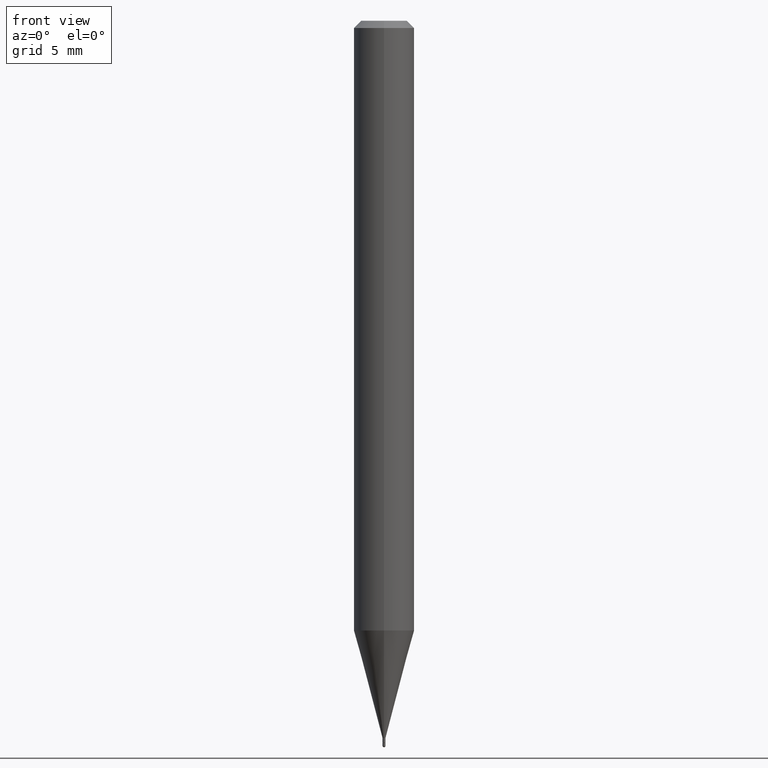
[diagram: clean part render]
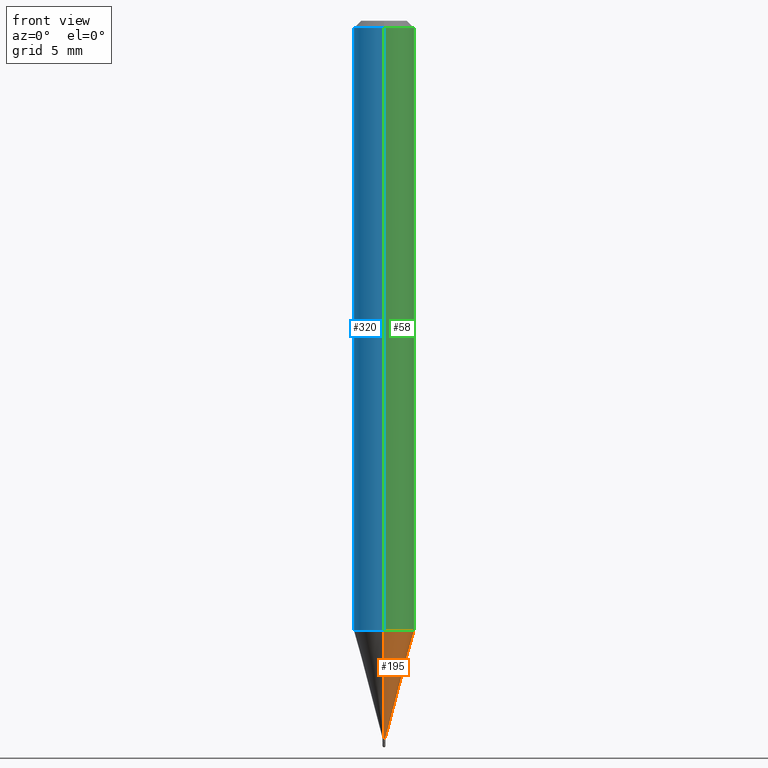
[diagram: same view with three faces highlighted in distinct colors, each labeled with its STEP entity id]
A machine part, front view with three faces highlighted in distinct colors.
Their STEP definitions:

[orange] entity #195 — the highlighted conical surface has half-angle 15 deg.
#26 = CARTESIAN_POINT ( 'NONE',  ( -4.364351673553607559E-16, -0.06250000000000438538, -1.258942976949652293 ) ) ;
#44 = VECTOR ( 'NONE', #398, 39.37007874015748143 ) ;
#75 = VECTOR ( 'NONE', #149, 39.37007874015748143 ) ;
#83 = CIRCLE ( 'NONE', #159, 0.06250000000000000000 ) ;
#100 = CARTESIAN_POINT ( 'NONE',  ( 4.440892098500932831E-16, 0.06249999999999560074, -1.258942976949652737 ) ) ;
#122 = EDGE_CURVE ( 'NONE', #238, #440, #190, .T. ) ;
#129 = DIRECTION ( 'NONE',  ( -6.982962677686264344E-15, -1.000000000000000000, 0.000000000000000000 ) ) ;
#149 = DIRECTION ( 'NONE',  ( 1.839019923739601104E-15, 0.2588190451025250693, 0.9659258262890670910 ) ) ;
#150 = VERTEX_POINT ( 'NONE', #26 ) ;
#156 = DIRECTION ( 'NONE',  ( -6.982962677686265922E-15, -1.000000000000000000, 4.370956789862821150E-15 ) ) ;
#159 = AXIS2_PLACEMENT_3D ( 'NONE', #455, #189, #156 ) ;
#165 = DIRECTION ( 'NONE',  ( -2.445479479011041062E-29, 3.491466054748990607E-15, 1.000000000000000000 ) ) ;
#169 = ORIENTED_EDGE ( 'NONE', *, *, #467, .F. ) ;
#175 = CARTESIAN_POINT ( 'NONE',  ( 2.327027459614661497E-16, 0.002999999999994752090, -1.481000000000000094 ) ) ;
#189 = DIRECTION ( 'NONE',  ( -2.445479479011041062E-29, 3.491466054748990607E-15, 1.000000000000000000 ) ) ;
#190 = LINE ( 'NONE', #501, #75 ) ;
#194 = AXIS2_PLACEMENT_3D ( 'NONE', #349, #165, #129 ) ;
#195 = ADVANCED_FACE ( 'NONE', ( #383 ), #434, .T. ) ;
#213 = ORIENTED_EDGE ( 'NONE', *, *, #321, .F. ) ;
#216 = VERTEX_POINT ( 'NONE', #278 ) ;
#238 = VERTEX_POINT ( 'NONE', #175 ) ;
#260 = EDGE_LOOP ( 'NONE', ( #508, #387, #169, #213 ) ) ;
#271 = EDGE_CURVE ( 'NONE', #216, #238, #485, .T. ) ;
#278 = CARTESIAN_POINT ( 'NONE',  ( -2.094888803302204488E-17, -0.003000000000005094512, -1.481000000000000094 ) ) ;
#310 = DIRECTION ( 'NONE',  ( -2.445479479011041062E-29, 3.491466054748990607E-15, 1.000000000000000000 ) ) ;
#321 = EDGE_CURVE ( 'NONE', #216, #150, #491, .T. ) ;
#343 = CARTESIAN_POINT ( 'NONE',  ( 3.621755108415351772E-29, -5.170861227083255778E-15, -1.481000000000000094 ) ) ;
#349 = CARTESIAN_POINT ( 'NONE',  ( 3.621755108415351772E-29, -5.170861227083255778E-15, -1.481000000000000094 ) ) ;
#355 = DIRECTION ( 'NONE',  ( -6.982962677686264344E-15, -1.000000000000000000, 0.000000000000000000 ) ) ;
#383 = FACE_OUTER_BOUND ( 'NONE', #260, .T. ) ;
#387 = ORIENTED_EDGE ( 'NONE', *, *, #122, .T. ) ;
#388 = AXIS2_PLACEMENT_3D ( 'NONE', #343, #310, #355 ) ;
#398 = DIRECTION ( 'NONE',  ( -1.807323732225330928E-15, -0.2588190451025182970, 0.9659258262890689783 ) ) ;
#434 = CONICAL_SURFACE ( 'NONE', #194, 0.002999999999999923735, 0.2617993877991502960 ) ;
#440 = VERTEX_POINT ( 'NONE', #100 ) ;
#448 = CARTESIAN_POINT ( 'NONE',  ( -2.094888803302204488E-17, -0.003000000000005094512, -1.481000000000000094 ) ) ;
#455 = CARTESIAN_POINT ( 'NONE',  ( 3.078719215375445112E-29, -4.395556668884352464E-15, -1.258942976949652515 ) ) ;
#467 = EDGE_CURVE ( 'NONE', #150, #440, #83, .T. ) ;
#485 = CIRCLE ( 'NONE', #388, 0.002999999999999923735 ) ;
#491 = LINE ( 'NONE', #448, #44 ) ;
#501 = CARTESIAN_POINT ( 'NONE',  ( 2.131628207283867732E-17, 0.002999999999994752958, -1.481000000000000094 ) ) ;
#508 = ORIENTED_EDGE ( 'NONE', *, *, #271, .T. ) ;

[blue] entity #320 — the highlighted cylindrical surface (edge-blend (fillet) strip) has radius 1.5875 mm, axis along (-0, 0, 1).
#6 = EDGE_CURVE ( 'NONE', #440, #257, #303, .T. ) ;
#8 = DIRECTION ( 'NONE',  ( -2.445479479011040781E-29, 3.491466054748990607E-15, 1.000000000000000000 ) ) ;
#11 = CIRCLE ( 'NONE', #178, 0.06250000000000000000 ) ;
#13 = EDGE_CURVE ( 'NONE', #150, #52, #356, .T. ) ;
#26 = CARTESIAN_POINT ( 'NONE',  ( -4.364351673553607559E-16, -0.06250000000000438538, -1.258942976949652293 ) ) ;
#28 = ORIENTED_EDGE ( 'NONE', *, *, #13, .T. ) ;
#37 = DIRECTION ( 'NONE',  ( -6.982962677686265922E-15, -1.000000000000000000, 3.483106191921935554E-15 ) ) ;
#52 = VERTEX_POINT ( 'NONE', #487 ) ;
#100 = CARTESIAN_POINT ( 'NONE',  ( 4.440892098500932831E-16, 0.06249999999999560074, -1.258942976949652737 ) ) ;
#120 = ORIENTED_EDGE ( 'NONE', *, *, #314, .F. ) ;
#136 = CYLINDRICAL_SURFACE ( 'NONE', #369, 0.06250000000000000000 ) ;
#138 = CARTESIAN_POINT ( 'NONE',  ( 0.000000000000000000, 0.000000000000000000, 0.000000000000000000 ) ) ;
#148 = DIRECTION ( 'NONE',  ( -2.445479479011041062E-29, 3.491466054748990607E-15, 1.000000000000000000 ) ) ;
#150 = VERTEX_POINT ( 'NONE', #26 ) ;
#170 = CARTESIAN_POINT ( 'NONE',  ( 3.668219218516502966E-31, -5.237199082123403129E-17, -0.01499999999999976179 ) ) ;
#178 = AXIS2_PLACEMENT_3D ( 'NONE', #179, #479, #318 ) ;
#179 = CARTESIAN_POINT ( 'NONE',  ( 3.078719215375445112E-29, -4.395556668884352464E-15, -1.258942976949652515 ) ) ;
#240 = EDGE_LOOP ( 'NONE', ( #477, #334, #28, #120 ) ) ;
#241 = FACE_OUTER_BOUND ( 'NONE', #240, .T. ) ;
#257 = VERTEX_POINT ( 'NONE', #393 ) ;
#273 = CARTESIAN_POINT ( 'NONE',  ( -4.364351673553916201E-16, -0.06250000000000000000, 2.182166284218119129E-16 ) ) ;
#281 = DIRECTION ( 'NONE',  ( -6.982962677686265922E-15, -1.000000000000000000, 3.491466054748990607E-15 ) ) ;
#303 = LINE ( 'NONE', #478, #386 ) ;
#305 = EDGE_CURVE ( 'NONE', #440, #150, #11, .T. ) ;
#314 = EDGE_CURVE ( 'NONE', #257, #52, #345, .T. ) ;
#318 = DIRECTION ( 'NONE',  ( -6.982962677686265922E-15, -1.000000000000000000, 4.370956789862821150E-15 ) ) ;
#320 = ADVANCED_FACE ( 'NONE', ( #241 ), #136, .T. ) ;
#334 = ORIENTED_EDGE ( 'NONE', *, *, #305, .T. ) ;
#345 = CIRCLE ( 'NONE', #353, 0.06250000000000000000 ) ;
#353 = AXIS2_PLACEMENT_3D ( 'NONE', #170, #430, #37 ) ;
#356 = LINE ( 'NONE', #273, #420 ) ;
#369 = AXIS2_PLACEMENT_3D ( 'NONE', #138, #148, #281 ) ;
#386 = VECTOR ( 'NONE', #8, 39.37007874015748143 ) ;
#393 = CARTESIAN_POINT ( 'NONE',  ( 4.440892098500935790E-16, 0.06249999999999995143, -0.01499999999999997863 ) ) ;
#420 = VECTOR ( 'NONE', #437, 39.37007874015748143 ) ;
#430 = DIRECTION ( 'NONE',  ( -2.445479479011041062E-29, 3.491466054748990607E-15, 1.000000000000000000 ) ) ;
#437 = DIRECTION ( 'NONE',  ( -2.445479479011040781E-29, 3.491466054748990607E-15, 1.000000000000000000 ) ) ;
#440 = VERTEX_POINT ( 'NONE', #100 ) ;
#477 = ORIENTED_EDGE ( 'NONE', *, *, #6, .F. ) ;
#478 = CARTESIAN_POINT ( 'NONE',  ( 4.440892098500625669E-16, 0.06250000000000000000, -2.182166284218119129E-16 ) ) ;
#479 = DIRECTION ( 'NONE',  ( -2.445479479011041062E-29, 3.491466054748990607E-15, 1.000000000000000000 ) ) ;
#487 = CARTESIAN_POINT ( 'NONE',  ( -4.364351673553912750E-16, -0.06250000000000005551, -0.01499999999999954321 ) ) ;

[green] entity #58 — the highlighted cylindrical surface (edge-blend (fillet) strip) has radius 1.5875 mm, axis along (-0, 0, 1).
#6 = EDGE_CURVE ( 'NONE', #440, #257, #303, .T. ) ;
#8 = DIRECTION ( 'NONE',  ( -2.445479479011040781E-29, 3.491466054748990607E-15, 1.000000000000000000 ) ) ;
#13 = EDGE_CURVE ( 'NONE', #150, #52, #356, .T. ) ;
#19 = CIRCLE ( 'NONE', #131, 0.06250000000000000000 ) ;
#26 = CARTESIAN_POINT ( 'NONE',  ( -4.364351673553607559E-16, -0.06250000000000438538, -1.258942976949652293 ) ) ;
#47 = ORIENTED_EDGE ( 'NONE', *, *, #6, .T. ) ;
#49 = DIRECTION ( 'NONE',  ( -2.445479479011041062E-29, 3.491466054748990607E-15, 1.000000000000000000 ) ) ;
#52 = VERTEX_POINT ( 'NONE', #487 ) ;
#57 = CARTESIAN_POINT ( 'NONE',  ( 0.000000000000000000, 0.000000000000000000, 0.000000000000000000 ) ) ;
#58 = ADVANCED_FACE ( 'NONE', ( #390 ), #397, .T. ) ;
#62 = DIRECTION ( 'NONE',  ( -6.982962677686265922E-15, -1.000000000000000000, 3.483106191921935554E-15 ) ) ;
#64 = AXIS2_PLACEMENT_3D ( 'NONE', #57, #49, #110 ) ;
#83 = CIRCLE ( 'NONE', #159, 0.06250000000000000000 ) ;
#100 = CARTESIAN_POINT ( 'NONE',  ( 4.440892098500932831E-16, 0.06249999999999560074, -1.258942976949652737 ) ) ;
#104 = EDGE_CURVE ( 'NONE', #52, #257, #19, .T. ) ;
#110 = DIRECTION ( 'NONE',  ( -6.982962677686265922E-15, -1.000000000000000000, 3.491466054748990607E-15 ) ) ;
#114 = EDGE_LOOP ( 'NONE', ( #424, #47, #127, #329 ) ) ;
#127 = ORIENTED_EDGE ( 'NONE', *, *, #104, .F. ) ;
#131 = AXIS2_PLACEMENT_3D ( 'NONE', #376, #366, #62 ) ;
#150 = VERTEX_POINT ( 'NONE', #26 ) ;
#156 = DIRECTION ( 'NONE',  ( -6.982962677686265922E-15, -1.000000000000000000, 4.370956789862821150E-15 ) ) ;
#159 = AXIS2_PLACEMENT_3D ( 'NONE', #455, #189, #156 ) ;
#189 = DIRECTION ( 'NONE',  ( -2.445479479011041062E-29, 3.491466054748990607E-15, 1.000000000000000000 ) ) ;
#257 = VERTEX_POINT ( 'NONE', #393 ) ;
#273 = CARTESIAN_POINT ( 'NONE',  ( -4.364351673553916201E-16, -0.06250000000000000000, 2.182166284218119129E-16 ) ) ;
#303 = LINE ( 'NONE', #478, #386 ) ;
#329 = ORIENTED_EDGE ( 'NONE', *, *, #13, .F. ) ;
#356 = LINE ( 'NONE', #273, #420 ) ;
#366 = DIRECTION ( 'NONE',  ( -2.445479479011041062E-29, 3.491466054748990607E-15, 1.000000000000000000 ) ) ;
#376 = CARTESIAN_POINT ( 'NONE',  ( 3.668219218516502966E-31, -5.237199082123403129E-17, -0.01499999999999976179 ) ) ;
#386 = VECTOR ( 'NONE', #8, 39.37007874015748143 ) ;
#390 = FACE_OUTER_BOUND ( 'NONE', #114, .T. ) ;
#393 = CARTESIAN_POINT ( 'NONE',  ( 4.440892098500935790E-16, 0.06249999999999995143, -0.01499999999999997863 ) ) ;
#397 = CYLINDRICAL_SURFACE ( 'NONE', #64, 0.06250000000000000000 ) ;
#420 = VECTOR ( 'NONE', #437, 39.37007874015748143 ) ;
#424 = ORIENTED_EDGE ( 'NONE', *, *, #467, .T. ) ;
#437 = DIRECTION ( 'NONE',  ( -2.445479479011040781E-29, 3.491466054748990607E-15, 1.000000000000000000 ) ) ;
#440 = VERTEX_POINT ( 'NONE', #100 ) ;
#455 = CARTESIAN_POINT ( 'NONE',  ( 3.078719215375445112E-29, -4.395556668884352464E-15, -1.258942976949652515 ) ) ;
#467 = EDGE_CURVE ( 'NONE', #150, #440, #83, .T. ) ;
#478 = CARTESIAN_POINT ( 'NONE',  ( 4.440892098500625669E-16, 0.06250000000000000000, -2.182166284218119129E-16 ) ) ;
#487 = CARTESIAN_POINT ( 'NONE',  ( -4.364351673553912750E-16, -0.06250000000000005551, -0.01499999999999954321 ) ) ;